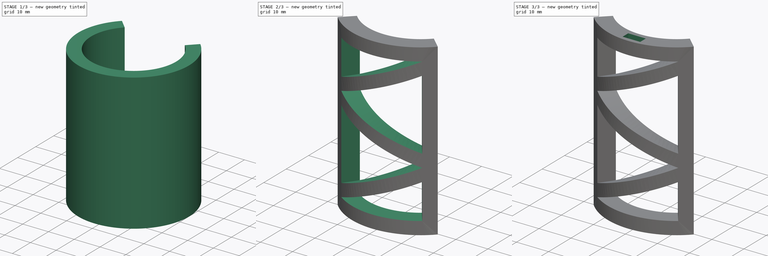
[diagram: build sequence overview — one tinted view per stage of 3, left to right]
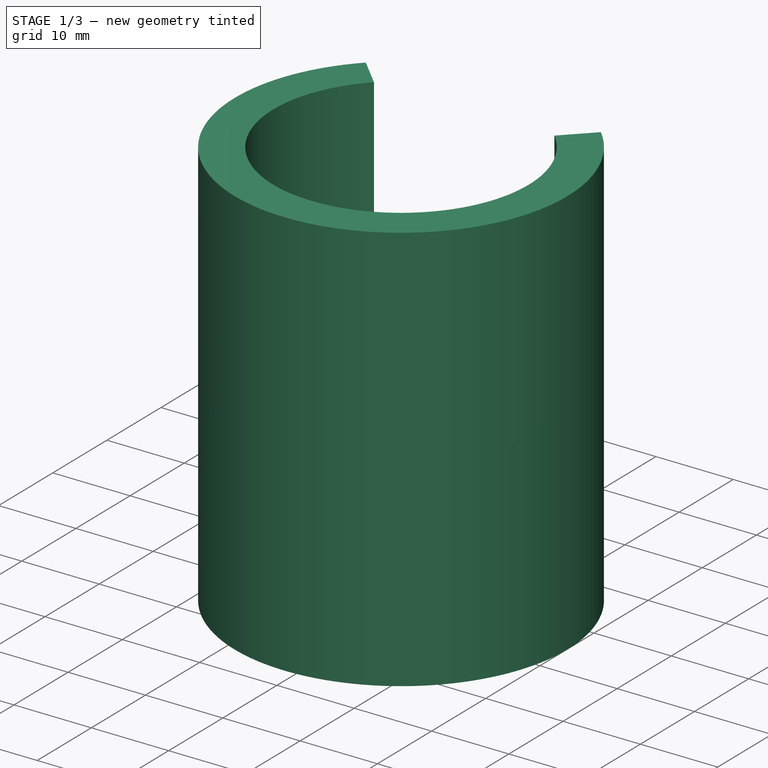
[diagram: stage 1 of 3 — iso view after this stage's code; geometry added in this stage tinted green]
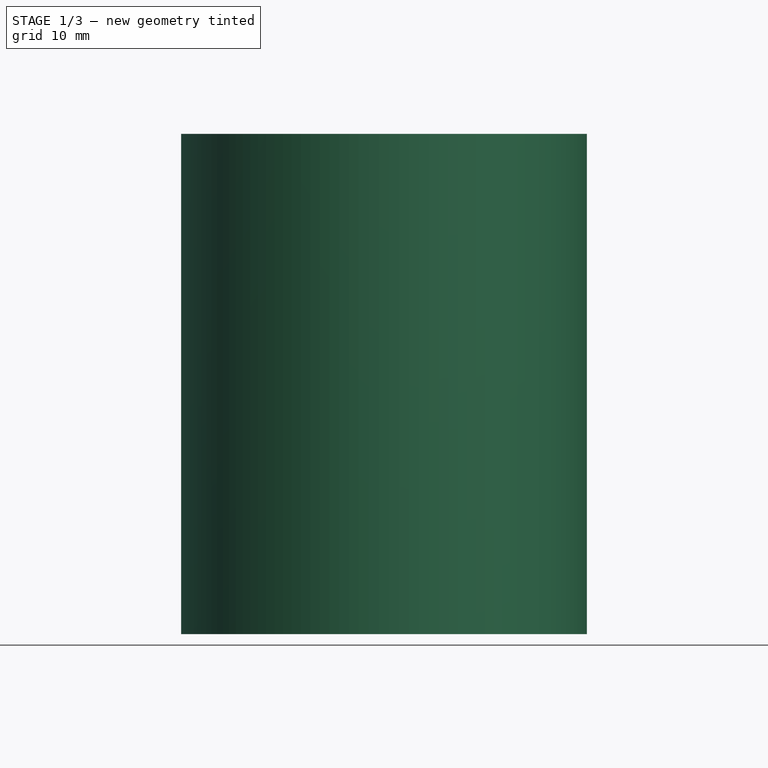
[diagram: stage 1 of 3 — front view after this stage's code; geometry added in this stage tinted green]
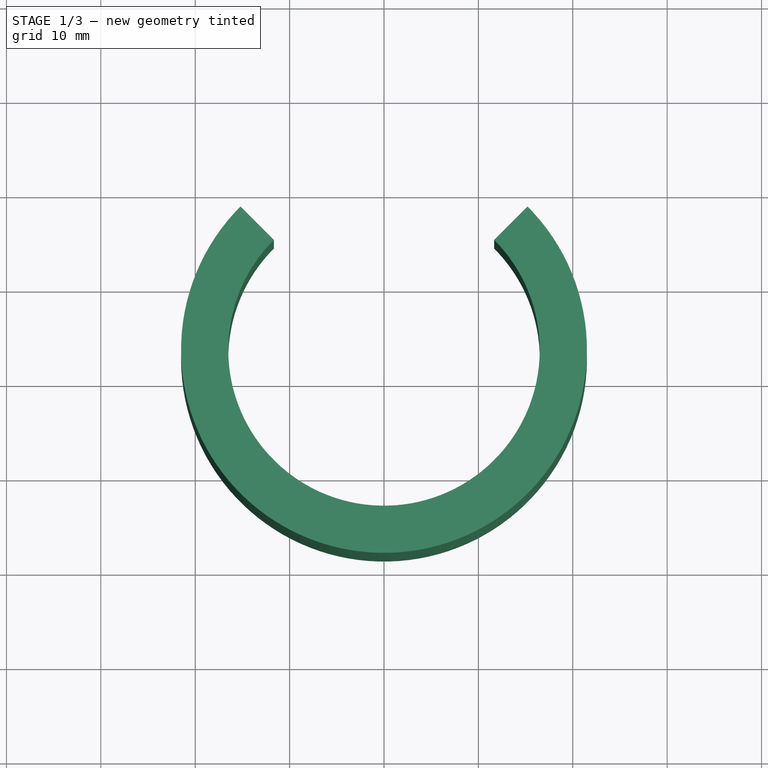
[diagram: stage 1 of 3 — top view after this stage's code; geometry added in this stage tinted green]
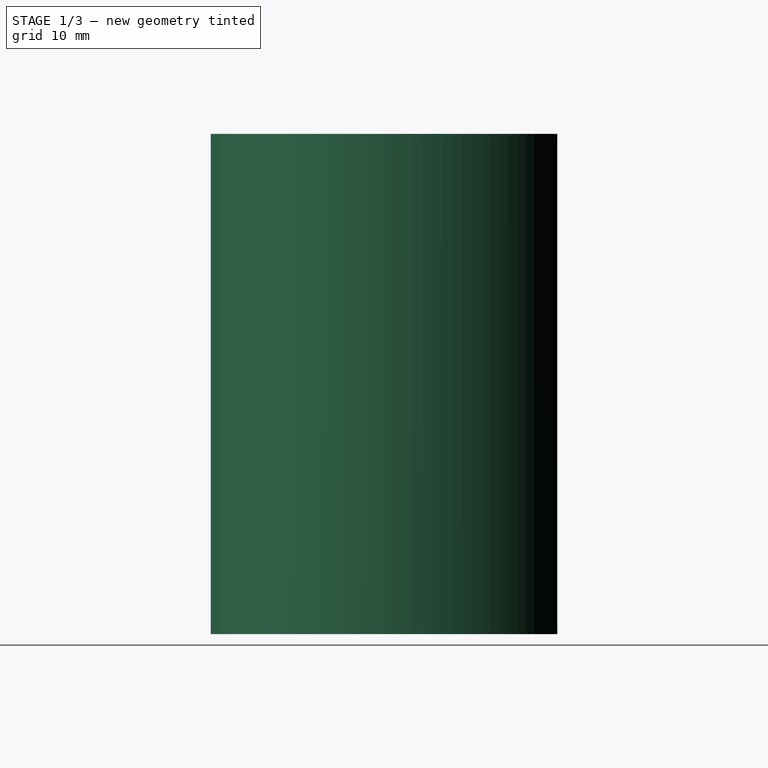
[diagram: stage 1 of 3 — right view after this stage's code; geometry added in this stage tinted green]
FCSTD DOCUMENT  (FreeCAD 0.20R29603 (Git))
Label: LaserCoolersBottomPanel
License: All rights reserved
LicenseURL: http://en.wikipedia.org/wiki/All_rights_reserved
objects: Sketcher::SketchObject×4, PartDesign::Pad×3, PartDesign::Body×3, Part::Cut×2, Part::FeaturePython×1, PartDesign::ShapeBinder×1
note: 17 computed .brp shape members not serialized (recipe doc carries the construction recipe); baked Part::Feature solids carry a one-line shape summary decoded from their .brp

FEATURE [Sketcher::SketchObject] Sketch006  label="TemplateSketch002"
  FullyConstrained = true
  MapMode = 5
  Support = -> [XY_Plane]
  sketch-geometry (11):
    g0: Circle CenterX=0 CenterY=0 CenterZ=0 NormalX=0 NormalY=0 NormalZ=1 AngleXU=0 Radius=13.5
    g1: LineSegment StartX=13.0815 StartY=6.01041 StartZ=0 EndX=6.01041 EndY=13.0815 EndZ=0
    g2: LineSegment StartX=0 StartY=0 StartZ=0 EndX=9.54594 EndY=9.54594 EndZ=0
    g3: LineSegment StartX=0 StartY=0 StartZ=0 EndX=-9.54594 EndY=9.54594 EndZ=0
    g4: Circle CenterX=0 CenterY=0 CenterZ=0 NormalX=0 NormalY=0 NormalZ=1 AngleXU=0 Radius=10.5
    g5: LineSegment StartX=15.2028 StartY=8.13173 StartZ=0 EndX=11.6673 EndY=4.59619 EndZ=0
    g6: LineSegment StartX=15.2028 StartY=8.13173 StartZ=0 EndX=8.13173 EndY=15.2028 EndZ=0
    g7: ArcOfCircle CenterX=5e-16 CenterY=-7.07108 CenterZ=0 NormalX=0 NormalY=0 NormalZ=1 AngleXU=0 Radius=16.5 StartAngle=2.35619 EndAngle=7.06858
    g8: ArcOfCircle CenterX=-2e-16 CenterY=-7.07108 CenterZ=0 NormalX=0 NormalY=0 NormalZ=1 AngleXU=0 Radius=21.5 StartAngle=2.35619 EndAngle=7.06858
    g9: LineSegment StartX=11.6673 StartY=4.59619 StartZ=0 EndX=15.2028 EndY=8.13173 EndZ=0
    g10: LineSegment StartX=-15.2028 StartY=8.13173 StartZ=0 EndX=-11.6673 EndY=4.59619 EndZ=0
  constraints (28):
    c: Coincident(g0,g-1)
    c: Diameter(g0) = 27
    c: Coincident(g2,g0)
    c: PointOnObject(g2,g0)
    c: Coincident(g3,g0)
    c: Symmetric(g3,g2,g-2)
    c: Angle(g2,g3) = 1.5708
    c: Distance(g1) = 10
    c: Symmetric(g1,g1,g2)
    c: Tangent(g1,g0)
    c: Coincident(g4,g0)
    c: Diameter(g4) = 21
    c: Angle(g1,g5) = 1.5708
    c: PointOnObject(g1,g5)
    c: Distance(g5,g1) = 2
    c: Distance(g5,g1) = 3
    c: Parallel(g6,g1)
    c: Equal(g6,g1)
    c: Coincident(g7,g5)
    c: Symmetric(g7,g7,g-2)
    c: Coincident(g8,g5)
    c: Symmetric(g8,g8,g-2)
    c: Coincident(g7,g8)
    c: Tangent(g6,g8) = -1.5708
    c: Coincident(g10,g8)
    c: Coincident(g10,g7)
    c: Coincident(g8,g9)
    c: Coincident(g7,g9)
FEATURE [PartDesign::Pad] Pad
  Direction = (0,0,1)
  Length = 53
  Length2 = 10
  Profile = -> Sketch006
  ReferenceAxis = -> Sketch006 [N_Axis]
  Type = 0
FEATURE [PartDesign::ShapeBinder] CopySketch_On_Surface
  TraceSupport = false
FEATURE [PartDesign::Body] Body
  Group = -> [Sketch006,Pad,CopySketch_On_Surface]
  Origin = -> Origin
  Tip = -> Pad
FEATURE [Sketcher::SketchObject] Sketch007  label="TemplateSketch003"
  FullyConstrained = true
  MapMode = 5
  Support = -> [XY_Plane001]
  sketch-geometry (18):
    g0: Circle CenterX=0 CenterY=0 CenterZ=0 NormalX=0 NormalY=0 NormalZ=1 AngleXU=0 Radius=13.5
    g1: LineSegment StartX=13.0815 StartY=6.01041 StartZ=0 EndX=6.01041 EndY=13.0815 EndZ=0
    g2: LineSegment StartX=0 StartY=0 StartZ=0 EndX=9.54594 EndY=9.54594 EndZ=0
    g3: LineSegment StartX=0 StartY=0 StartZ=0 EndX=-9.54594 EndY=9.54594 EndZ=0
    g4: Circle CenterX=0 CenterY=0 CenterZ=0 NormalX=0 NormalY=0 NormalZ=1 AngleXU=0 Radius=10.5
    g5: LineSegment StartX=15.2028 StartY=8.13173 StartZ=0 EndX=11.6673 EndY=4.59619 EndZ=0
    g6: LineSegment StartX=15.2028 StartY=8.13173 StartZ=0 EndX=8.13173 EndY=15.2028 EndZ=0
    g7: ArcOfCircle CenterX=7e-16 CenterY=-7.07106 CenterZ=0 NormalX=0 NormalY=0 NormalZ=1 AngleXU=0 Radius=16.5 StartAngle=2.35619 EndAngle=7.06858
    g8: ArcOfCircle CenterX=-1.2e-15 CenterY=-7.07106 CenterZ=0 NormalX=0 NormalY=0 NormalZ=1 AngleXU=0 Radius=21.5 StartAngle=2.35619 EndAngle=7.06858
    g9: LineSegment StartX=11.6673 StartY=4.59619 StartZ=0 EndX=15.2028 EndY=8.13173 EndZ=0
    g10: LineSegment StartX=-15.2028 StartY=8.13173 StartZ=0 EndX=-11.6673 EndY=4.59619 EndZ=0
    g11: GeomPoint X=0 Y=-23.5711 Z=0
    g12: GeomPoint X=0 Y=-28.5711 Z=0
    g13: LineSegment StartX=-2.75 StartY=-24.8211 StartZ=0 EndX=-2.75 EndY=-27.3211 EndZ=0
    g14: LineSegment StartX=-2.75 StartY=-27.3211 StartZ=0 EndX=2.75 EndY=-27.3211 EndZ=0
    g15: LineSegment StartX=2.75 StartY=-27.3211 StartZ=0 EndX=2.75 EndY=-24.8211 EndZ=0
    g16: LineSegment StartX=2.75 StartY=-24.8211 StartZ=0 EndX=-2.75 EndY=-24.8211 EndZ=0
    g17: GeomPoint X=0 Y=-26.0711 Z=0
  constraints (44):
    c: Coincident(g0,g-1)
    c: Diameter(g0) = 27
    c: Coincident(g2,g0)
    c: PointOnObject(g2,g0)
    c: Coincident(g3,g0)
    c: Symmetric(g3,g2,g-2)
    c: Angle(g2,g3) = 1.5708
    c: Distance(g1) = 10
    c: Symmetric(g1,g1,g2)
    c: Tangent(g1,g0)
    c: Coincident(g4,g0)
    c: Diameter(g4) = 21
    c: Angle(g1,g5) = 1.5708
    c: PointOnObject(g1,g5)
    c: Distance(g5,g1) = 2
    c: Distance(g5,g1) = 3
    c: Parallel(g6,g1)
    c: Equal(g6,g1)
    c: Coincident(g7,g5)
    c: Symmetric(g7,g7,g-2)
    c: Coincident(g8,g5)
    c: Symmetric(g8,g8,g-2)
    c: Coincident(g7,g8)
    c: Tangent(g6,g8) = -1.5708
    c: Coincident(g10,g8)
    c: Coincident(g10,g7)
    c: Coincident(g8,g9)
    c: Coincident(g7,g9)
    c: PointOnObject(g11,g7)
    c: PointOnObject(g12,g8)
    c: PointOnObject(g12,g-2)
    c: PointOnObject(g11,g-2)
    c: Coincident(g13,g14)
    c: Coincident(g14,g15)
    c: Coincident(g15,g16)
    c: Coincident(g16,g13)
    c: Horizontal(g14)
    c: Horizontal(g16)
    c: Vertical(g13)
    c: Vertical(g15)
    c: Symmetric(g14,g13,g17)
    c: Symmetric(g12,g11,g17)
    c: DistanceX(g16,g16) = 5.5
    c: DistanceY(g15,g15) = 2.5
FEATURE [PartDesign::Pad] Pad001
  Direction = (0,0,1)
  Length = 3.5
  Length2 = 10
  Profile = -> Sketch007
  ReferenceAxis = -> Sketch007 [N_Axis]
  Type = 0
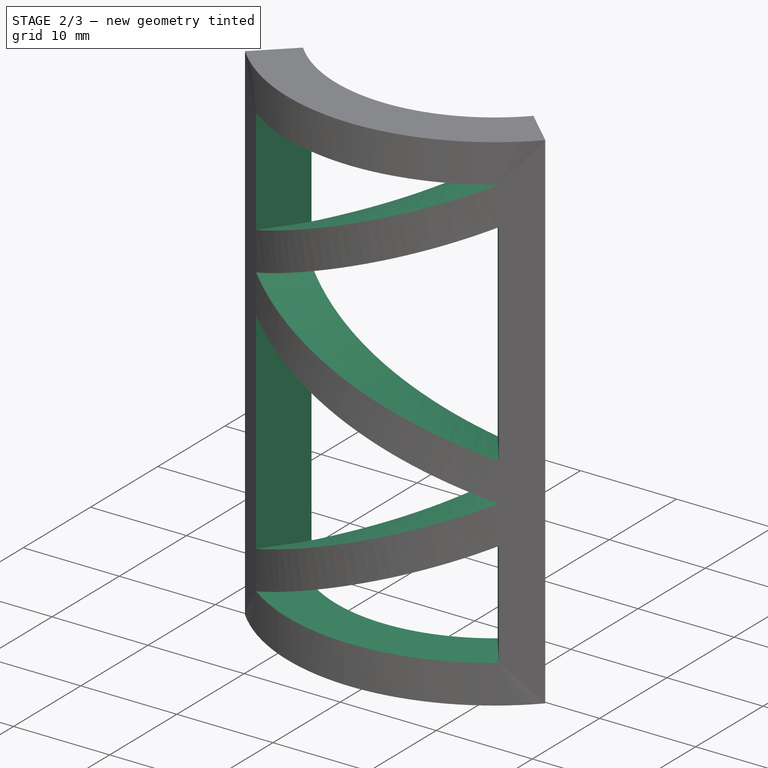
[diagram: stage 2 of 3 — iso view after this stage's code; geometry added in this stage tinted green]
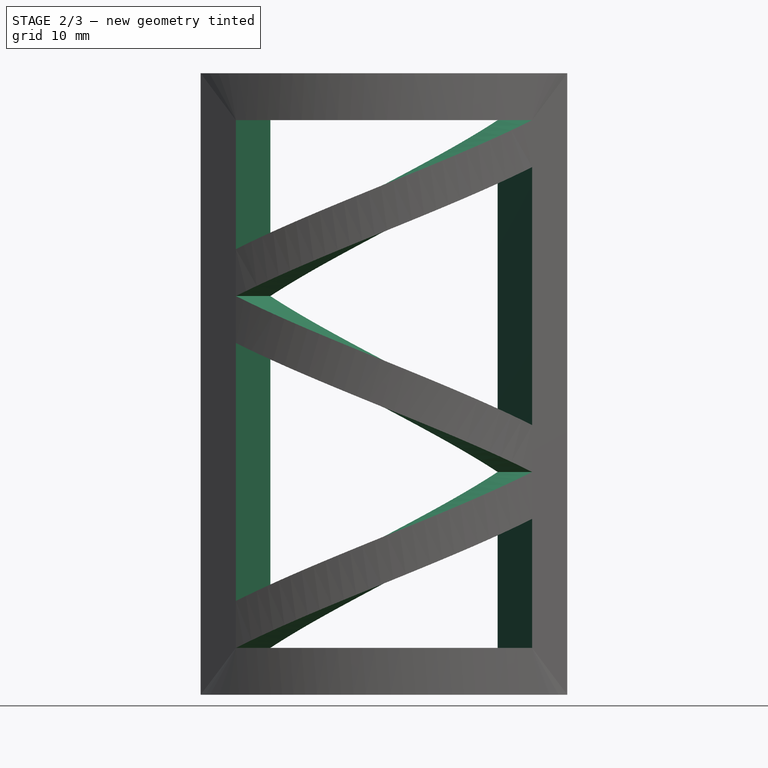
[diagram: stage 2 of 3 — front view after this stage's code; geometry added in this stage tinted green]
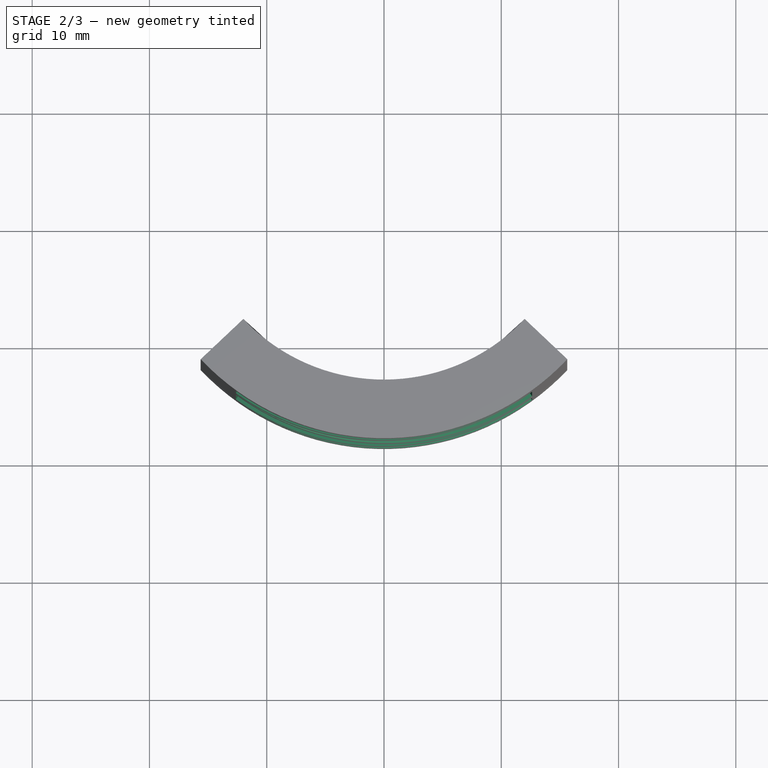
[diagram: stage 2 of 3 — top view after this stage's code; geometry added in this stage tinted green]
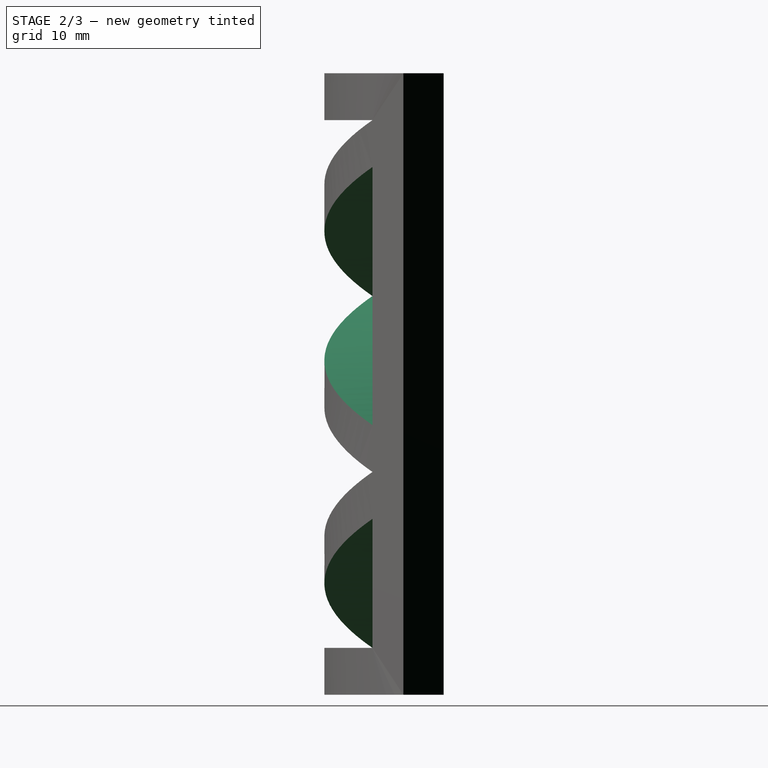
[diagram: stage 2 of 3 — right view after this stage's code; geometry added in this stage tinted green]
FEATURE [Sketcher::SketchObject] Mapped_Sketch
  FullyConstrained = true
  Support = -> [Pad]
  sketch-geometry (26):
    g0: LineSegment StartX=0 StartY=0 StartZ=0 EndX=101.316 EndY=0 EndZ=0
    g1: LineSegment StartX=101.316 StartY=0 StartZ=0 EndX=101.316 EndY=53 EndZ=0
    g2: LineSegment StartX=101.316 StartY=53 StartZ=0 EndX=0 EndY=53 EndZ=0
    g3: LineSegment StartX=0 StartY=53 StartZ=0 EndX=0 EndY=0 EndZ=0
    g4: LineSegment StartX=33.1582 StartY=53 StartZ=0 EndX=33.1582 EndY=0 EndZ=0
    g5: LineSegment StartX=68.1582 StartY=53 StartZ=0 EndX=68.1582 EndY=0 EndZ=0
    g6: LineSegment StartX=50.6582 StartY=53 StartZ=0 EndX=50.6582 EndY=0 EndZ=0
    g7: LineSegment StartX=33.1582 StartY=0 StartZ=0 EndX=68.1582 EndY=0 EndZ=0
    g8: LineSegment StartX=68.1582 StartY=53 StartZ=0 EndX=33.1582 EndY=53 EndZ=0
    g9: LineSegment StartX=37.1582 StartY=4 StartZ=0 EndX=64.1582 EndY=4 EndZ=0
    g10: LineSegment StartX=64.1582 StartY=4 StartZ=0 EndX=64.1582 EndY=49 EndZ=0
    g11: LineSegment StartX=64.1582 StartY=49 StartZ=0 EndX=37.1582 EndY=49 EndZ=0
    g12: LineSegment StartX=37.1582 StartY=49 StartZ=0 EndX=37.1582 EndY=4 EndZ=0
    g13: LineSegment StartX=37.1582 StartY=45 StartZ=0 EndX=64.1582 EndY=34 EndZ=0
    g14: LineSegment StartX=64.1582 StartY=34 StartZ=0 EndX=37.1582 EndY=23 EndZ=0
    g15: LineSegment StartX=64.1582 StartY=30 StartZ=0 EndX=37.1582 EndY=19 EndZ=0
    g16: LineSegment StartX=37.1582 StartY=19 StartZ=0 EndX=64.1582 EndY=8 EndZ=0
    g17: LineSegment StartX=64.1582 StartY=4 StartZ=0 EndX=37.1582 EndY=15 EndZ=0
    g18: LineSegment StartX=64.1582 StartY=38 StartZ=0 EndX=37.1582 EndY=49 EndZ=0
    g19: LineSegment StartX=64.1582 StartY=34 StartZ=0 EndX=37.1582 EndY=34 EndZ=0
    g20: LineSegment StartX=37.1582 StartY=49 StartZ=0 EndX=64.1582 EndY=49 EndZ=0
    g21: LineSegment StartX=64.1582 StartY=49 StartZ=0 EndX=64.1582 EndY=38 EndZ=0
    g22: LineSegment StartX=64.1582 StartY=30 StartZ=0 EndX=64.1582 EndY=8 EndZ=0
    g23: LineSegment StartX=37.1582 StartY=15 StartZ=0 EndX=37.1582 EndY=4 EndZ=0
    g24: LineSegment StartX=37.1582 StartY=4 StartZ=0 EndX=64.1582 EndY=4 EndZ=0
    g25: LineSegment StartX=37.1582 StartY=45 StartZ=0 EndX=37.1582 EndY=23 EndZ=0
  constraints (73):
    c: Coincident(g0,g-1)
    c: Coincident(g0,g1)
    c: Coincident(g1,g2)
    c: Coincident(g2,g3)
    c: Coincident(g3,g0)
    c: Horizontal(g0)
    c: Horizontal(g2)
    c: Vertical(g1)
    c: Vertical(g3)
    c: DistanceX(g2,g2) = 101.316
    c: DistanceY(g1,g1) = 53
    c: PointOnObject(g4,g2)
    c: PointOnObject(g4,g0)
    c: Vertical(g4)
    c: PointOnObject(g5,g0)
    c: Vertical(g5)
    c: DistanceX(g4,g5) = 35
    c: PointOnObject(g6,g0)
    c: Vertical(g6)
    c: Symmetric(g2,g1,g6)
    c: Symmetric(g5,g4,g6)
    c: Coincident(g8,g5)
    c: Coincident(g8,g4)
    c: Coincident(g7,g4)
    c: Coincident(g7,g5)
    c: Coincident(g9,g10)
    c: Coincident(g10,g11)
    c: Coincident(g11,g12)
    c: Coincident(g12,g9)
    c: Horizontal(g9)
    c: Horizontal(g11)
    c: Vertical(g10)
    c: Vertical(g12)
    c: DistanceX(g9,g5) = 4
    c: DistanceX(g4,g9) = 4
    c: DistanceY(g11,g4) = 4
    c: DistanceY(g5,g9) = 4
    c: PointOnObject(g13,g12)
    c: PointOnObject(g13,g10)
    c: Coincident(g14,g13)
    c: PointOnObject(g15,g10)
    c: PointOnObject(g15,g12)
    c: Coincident(g16,g15)
    c: PointOnObject(g16,g10)
    c: PointOnObject(g17,g9)
    c: PointOnObject(g17,g12)
    c: PointOnObject(g18,g10)
    c: PointOnObject(g18,g11)
    c: Distance(g13,g18) = 4
    c: Distance(g18,g13) = 4
    c: Distance(g13,g15) = 4
    c: Distance(g14,g15) = 4
    c: Distance(g17,g15) = 4
    c: Distance(g17,g16) = 4
    c: Parallel(g17,g16)
    c: Parallel(g16,g13)
    c: Parallel(g13,g18)
    c: Coincident(g19,g13)
    c: PointOnObject(g19,g12)
    c: Horizontal(g19)
    c: Symmetric(g13,g14,g19)
    c: Coincident(g20,g18)
    c: Coincident(g20,g10)
    c: Coincident(g21,g20)
    c: Coincident(g21,g18)
    c: Coincident(g22,g15)
    c: Coincident(g22,g16)
    c: Coincident(g24,g17)
    c: Coincident(g24,g9)
    c: Coincident(g23,g17)
    c: Coincident(g23,g24)
    c: Coincident(g25,g13)
    c: Coincident(g25,g14)
FEATURE [Part::FeaturePython] Sketch_On_Surface  # WARN: FeaturePython — macro-defined, semantics opaque (R4)
  ConstructionBounds = true
  FillExtrusion = true
  FillFaces = true
  Offset = -5
  ReverseU = false
  ReverseV = false
  Sketch = -> Mapped_Sketch
  SwapUV = false
  Thickness = 5
FEATURE [PartDesign::Body] Body002  label="Connector2"
  Group = -> [Sketch009,Pad002]
  Origin = -> Origin002
  Tip = -> Pad002
FEATURE [Part::Cut] Cut
  Base = -> Sketch_On_Surface
  Tool = -> Body001
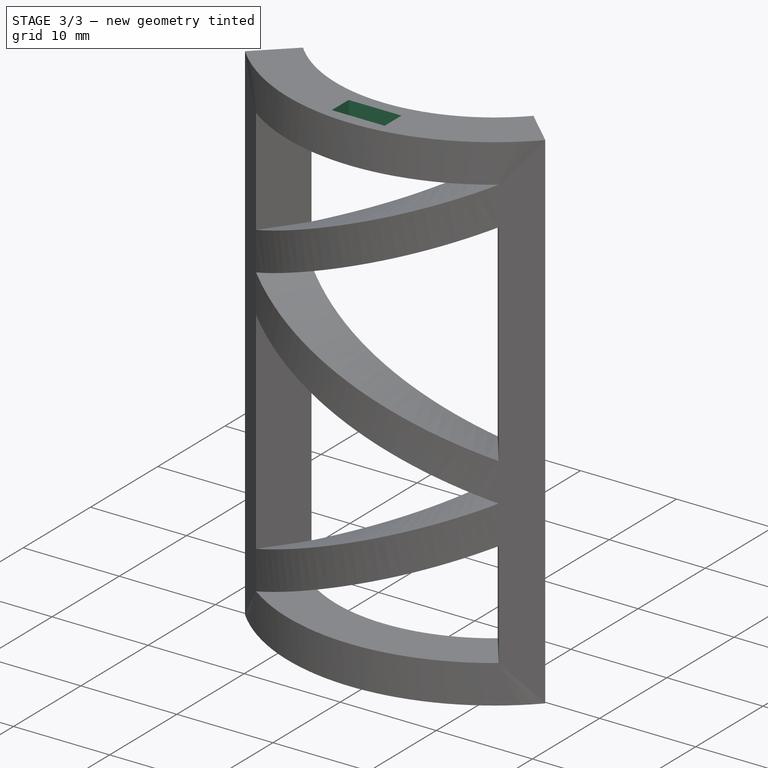
[diagram: stage 3 of 3 — iso view after this stage's code; geometry added in this stage tinted green]
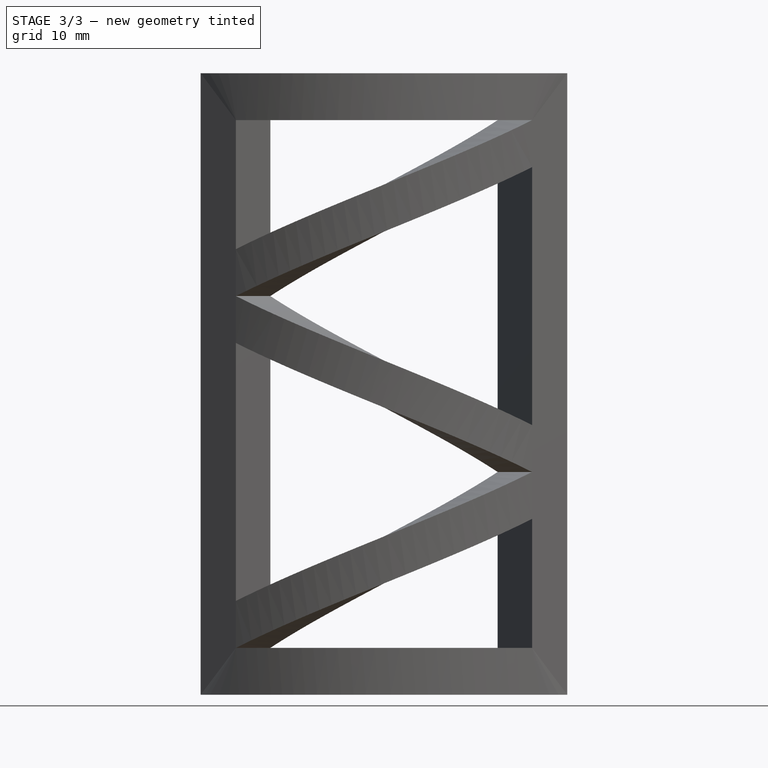
[diagram: stage 3 of 3 — front view after this stage's code; geometry added in this stage tinted green]
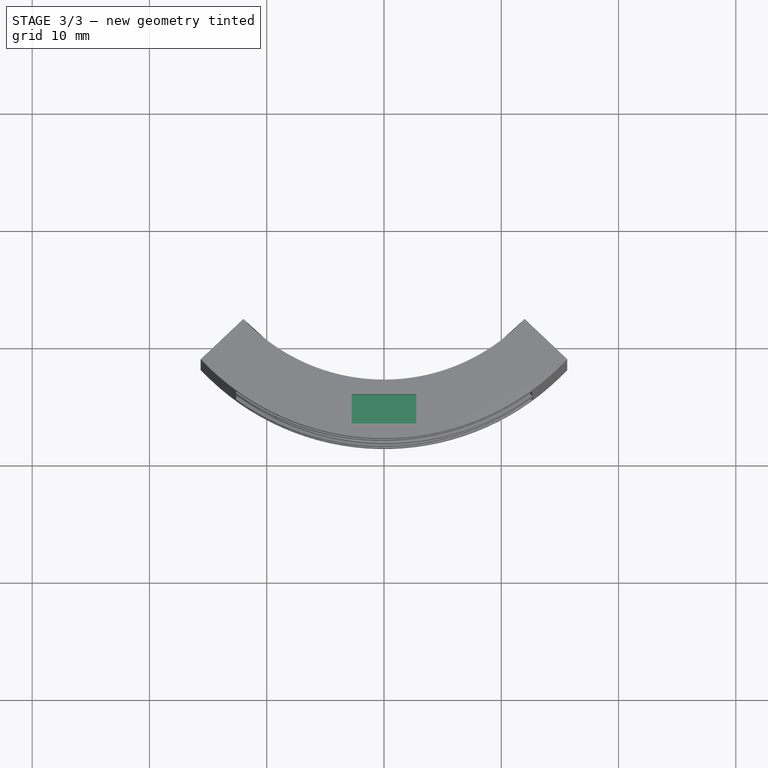
[diagram: stage 3 of 3 — top view after this stage's code; geometry added in this stage tinted green]
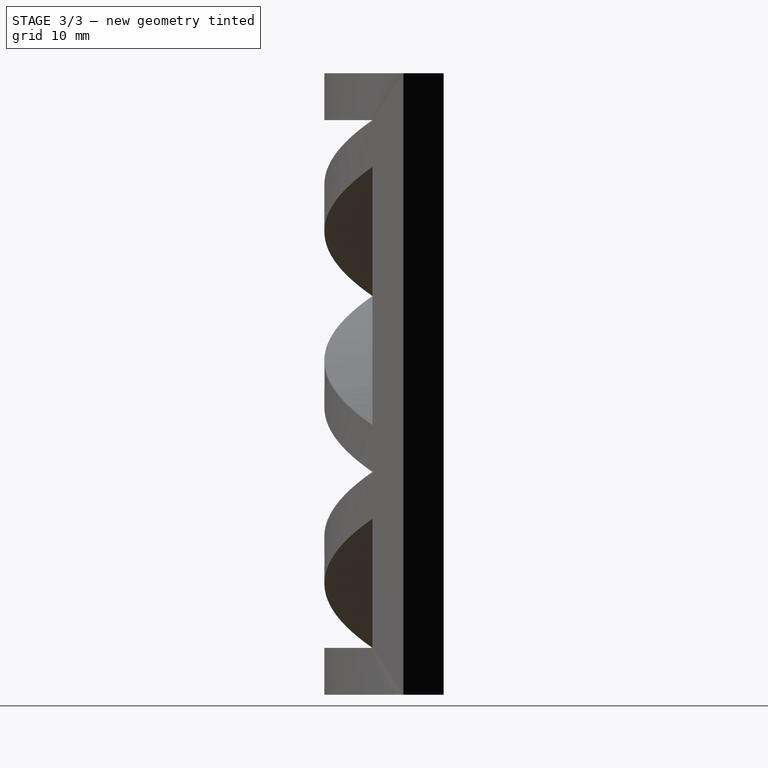
[diagram: stage 3 of 3 — right view after this stage's code; geometry added in this stage tinted green]
FEATURE [PartDesign::Body] Body001  label="Connector1"
  Group = -> [Sketch007,Pad001]
  Origin = -> Origin001
  Tip = -> Pad001
FEATURE [Sketcher::SketchObject] Sketch009  label="TemplateSketch005"
  AttachmentOffset = pos=(0,0,53) rot=(0,0,1;0rad)
  FullyConstrained = true
  MapMode = 5
  Placement = pos=(0,0,53) rot=(0,0,1;0rad)
  Support = -> [XY_Plane002]
  sketch-geometry (18):
    g0: Circle CenterX=0 CenterY=0 CenterZ=0 NormalX=0 NormalY=0 NormalZ=1 AngleXU=0 Radius=13.5
    g1: LineSegment StartX=13.0815 StartY=6.01041 StartZ=0 EndX=6.01041 EndY=13.0815 EndZ=0
    g2: LineSegment StartX=0 StartY=0 StartZ=0 EndX=9.54594 EndY=9.54594 EndZ=0
    g3: LineSegment StartX=0 StartY=0 StartZ=0 EndX=-9.54594 EndY=9.54594 EndZ=0
    g4: Circle CenterX=0 CenterY=0 CenterZ=0 NormalX=0 NormalY=0 NormalZ=1 AngleXU=0 Radius=10.5
    g5: LineSegment StartX=15.2028 StartY=8.13173 StartZ=0 EndX=11.6673 EndY=4.59619 EndZ=0
    g6: LineSegment StartX=15.2028 StartY=8.13173 StartZ=0 EndX=8.13173 EndY=15.2028 EndZ=0
    g7: ArcOfCircle CenterX=7e-16 CenterY=-7.07106 CenterZ=0 NormalX=0 NormalY=0 NormalZ=1 AngleXU=0 Radius=16.5 StartAngle=2.35619 EndAngle=7.06858
    g8: ArcOfCircle CenterX=-1.2e-15 CenterY=-7.07106 CenterZ=0 NormalX=0 NormalY=0 NormalZ=1 AngleXU=0 Radius=21.5 StartAngle=2.35619 EndAngle=7.06858
    g9: LineSegment StartX=11.6673 StartY=4.59619 StartZ=0 EndX=15.2028 EndY=8.13173 EndZ=0
    g10: LineSegment StartX=-15.2028 StartY=8.13173 StartZ=0 EndX=-11.6673 EndY=4.59619 EndZ=0
    g11: GeomPoint X=0 Y=-23.5711 Z=0
    g12: GeomPoint X=0 Y=-28.5711 Z=0
    g13: LineSegment StartX=-2.75 StartY=-24.8211 StartZ=0 EndX=-2.75 EndY=-27.3211 EndZ=0
    g14: LineSegment StartX=-2.75 StartY=-27.3211 StartZ=0 EndX=2.75 EndY=-27.3211 EndZ=0
    g15: LineSegment StartX=2.75 StartY=-27.3211 StartZ=0 EndX=2.75 EndY=-24.8211 EndZ=0
    g16: LineSegment StartX=2.75 StartY=-24.8211 StartZ=0 EndX=-2.75 EndY=-24.8211 EndZ=0
    g17: GeomPoint X=0 Y=-26.0711 Z=0
  constraints (44):
    c: Coincident(g0,g-1)
    c: Diameter(g0) = 27
    c: Coincident(g2,g0)
    c: PointOnObject(g2,g0)
    c: Coincident(g3,g0)
    c: Symmetric(g3,g2,g-2)
    c: Angle(g2,g3) = 1.5708
    c: Distance(g1) = 10
    c: Symmetric(g1,g1,g2)
    c: Tangent(g1,g0)
    c: Coincident(g4,g0)
    c: Diameter(g4) = 21
    c: Angle(g1,g5) = 1.5708
    c: PointOnObject(g1,g5)
    c: Distance(g5,g1) = 2
    c: Distance(g5,g1) = 3
    c: Parallel(g6,g1)
    c: Equal(g6,g1)
    c: Coincident(g7,g5)
    c: Symmetric(g7,g7,g-2)
    c: Coincident(g8,g5)
    c: Symmetric(g8,g8,g-2)
    c: Coincident(g7,g8)
    c: Tangent(g6,g8) = -1.5708
    c: Coincident(g10,g8)
    c: Coincident(g10,g7)
    c: Coincident(g8,g9)
    c: Coincident(g7,g9)
    c: PointOnObject(g11,g7)
    c: PointOnObject(g12,g8)
    c: PointOnObject(g12,g-2)
    c: PointOnObject(g11,g-2)
    c: Coincident(g13,g14)
    c: Coincident(g14,g15)
    c: Coincident(g15,g16)
    c: Coincident(g16,g13)
    c: Horizontal(g14)
    c: Horizontal(g16)
    c: Vertical(g13)
    c: Vertical(g15)
    c: Symmetric(g14,g13,g17)
    c: Symmetric(g12,g11,g17)
    c: DistanceX(g16,g16) = 5.5
    c: DistanceY(g15,g15) = 2.5
FEATURE [PartDesign::Pad] Pad002
  Direction = (0,0,1)
  Length = 3.5
  Length2 = 10
  Profile = -> Sketch009
  ReferenceAxis = -> Sketch009 [N_Axis]
  Reversed = true
  Type = 0
FEATURE [Part::Cut] Cut001
  Base = -> Cut
  Tool = -> Body002
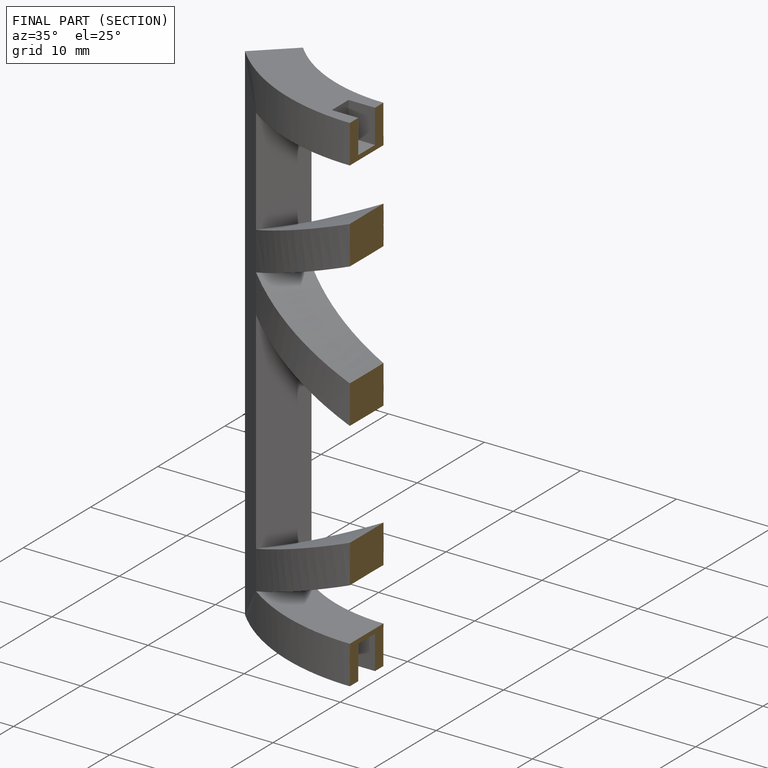
[diagram: finished part — half-section view (interior)]
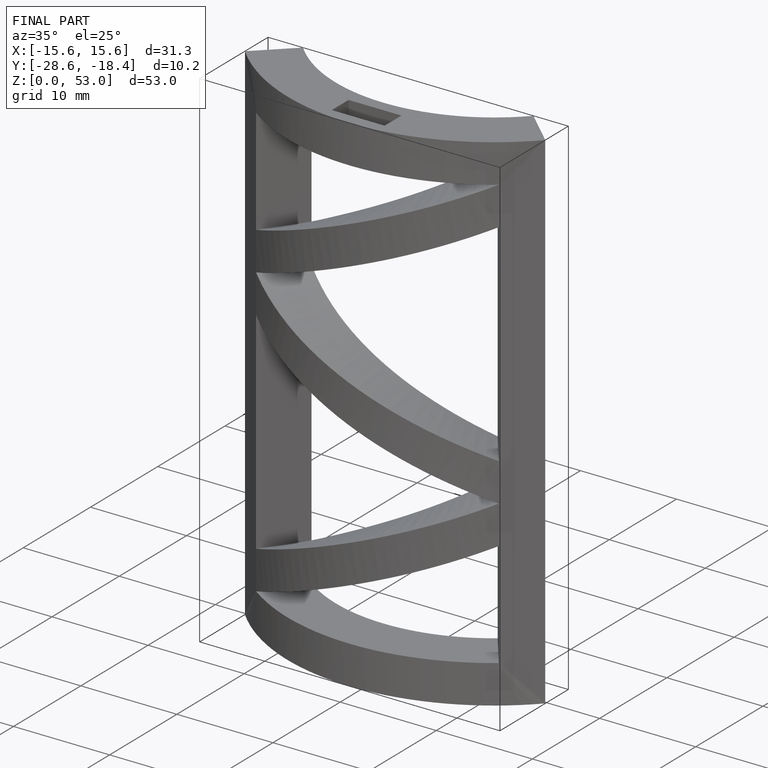
[diagram: finished part — iso view with bounding-box wireframe]
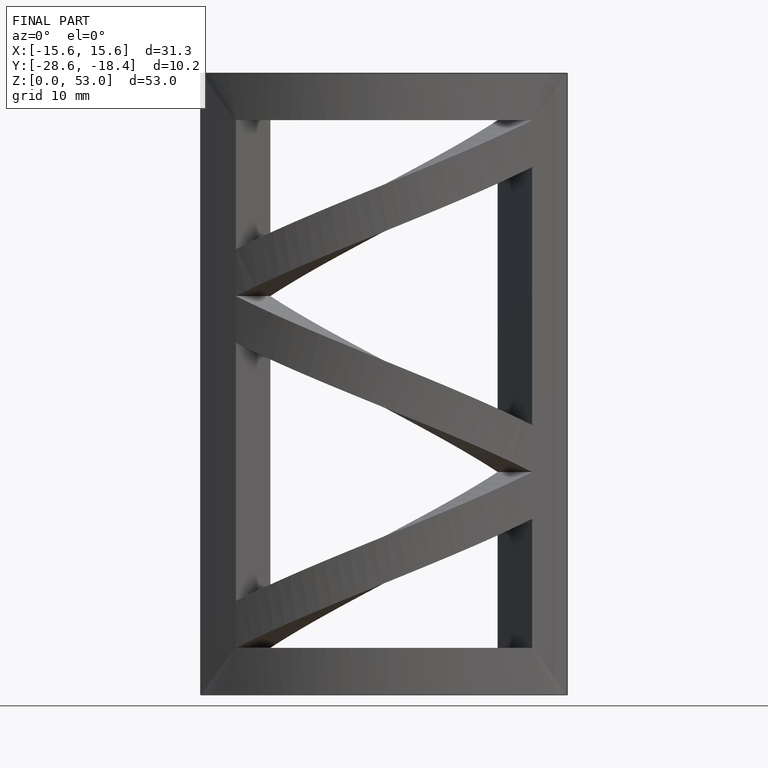
[diagram: finished part — front view with bounding-box wireframe]
